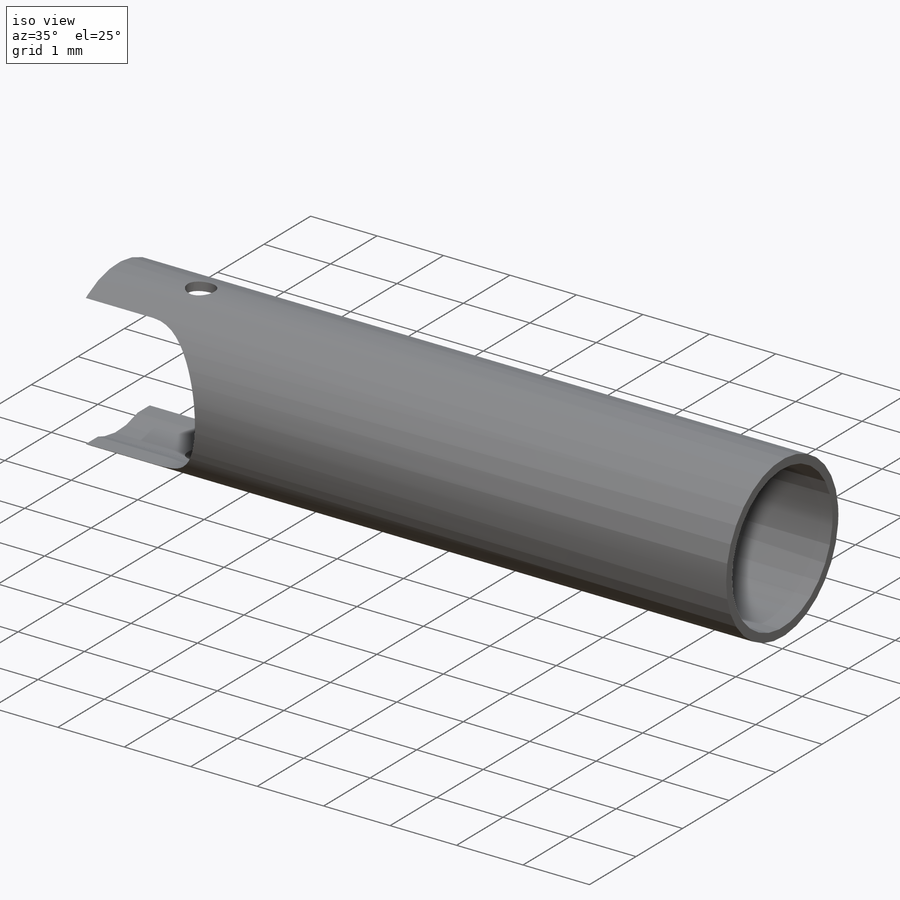
[diagram: iso view]
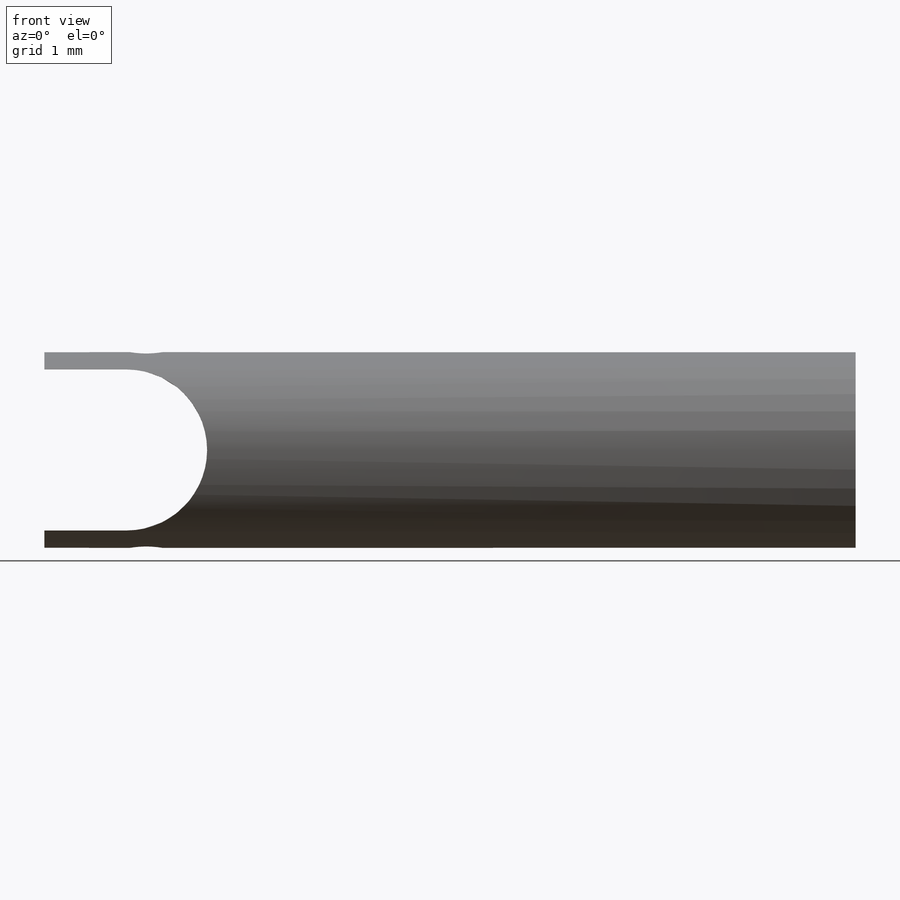
[diagram: front view]
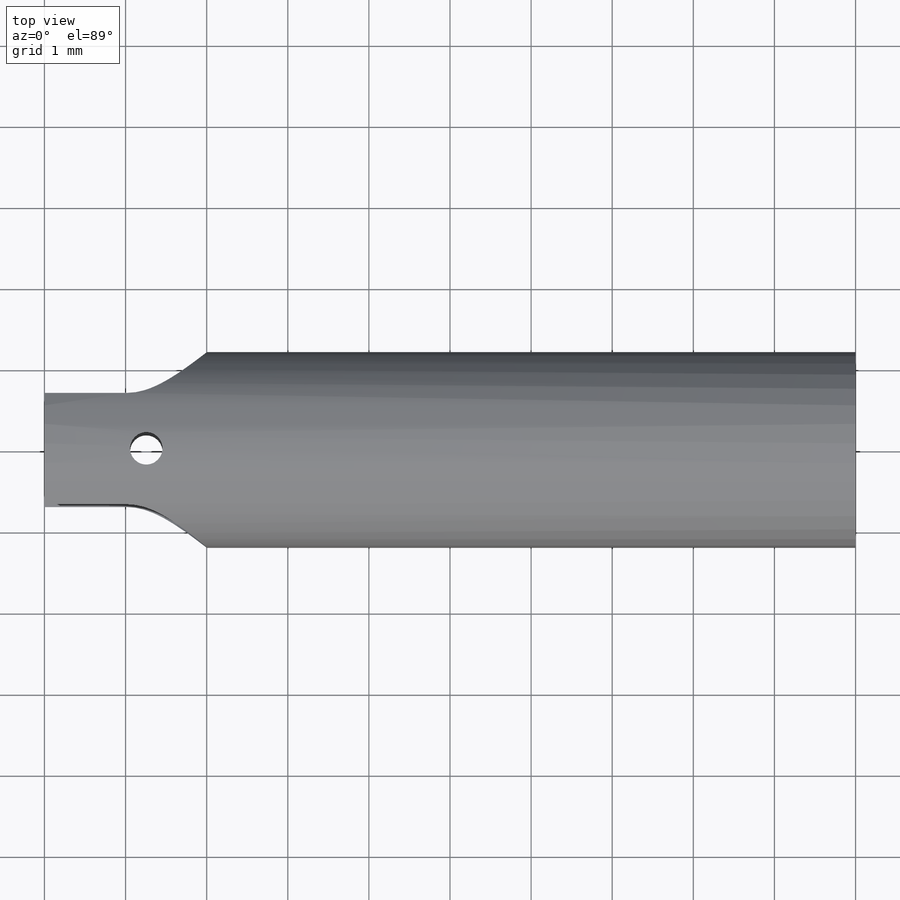
[diagram: top view]
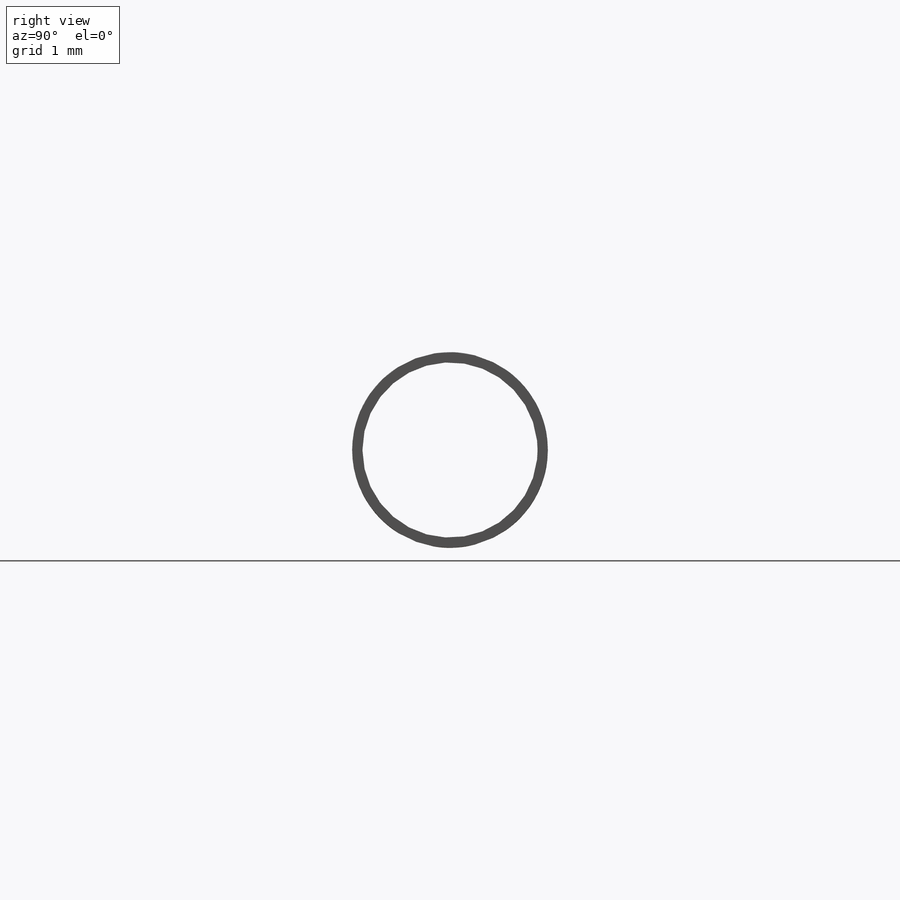
[diagram: right view]
SOLIDWORKS PART (.sldprt)
format: sldprt  version: not decoded by parser v0  size: 208,896 bytes
history: native  units: mm
features: sketch x4, cut_extrude x2, material x1, extrude x1 (+13 scaffold rows collapsed)
feature tree (21):
  scaffold x13  (default folders/planes/origin — collapsed)
  material  "Material <not specified>"
  sketch  "Sketch1"  dims[D1=2.413mm D2=2.159mm]
  extrude  "Boss-Extrude1"  Depth=10mm
  sketch  "Sketch2"  dims[c1.D1=~0.084086mm c1.D2=~0.345028mm c2.D1=2.032mm c2.D2=~0.035298mm]
  sketch  "Sketch5"  dims[c1.D3=~0.992188mm c1.D4=~0.992188mm c2.D3=~0.992188mm c2.D1=~1.470139mm c2.D2=~2.946545mm c3.D1=~1.984375mm c3.D2=1.5mm c3.D4=~1.984375mm c3.D5=~1.01367mm]
  cut_extrude  "Cut-Extrude4"  Depth=10mm
  sketch  "Sketch6"  dims[c1.D1=~0.848457mm c1.D2=0.4mm c2.D1=0.5mm c2.D3=0.75mm]
  cut_extrude  "Cut-Extrude5"  Depth=10mm
decode coverage: 7 of 7 modeling features carry decoded parameters
note: ~ marks probable driven/reference dimensions
note: suppression state not decoded; provenance and decode notes live in map.json
